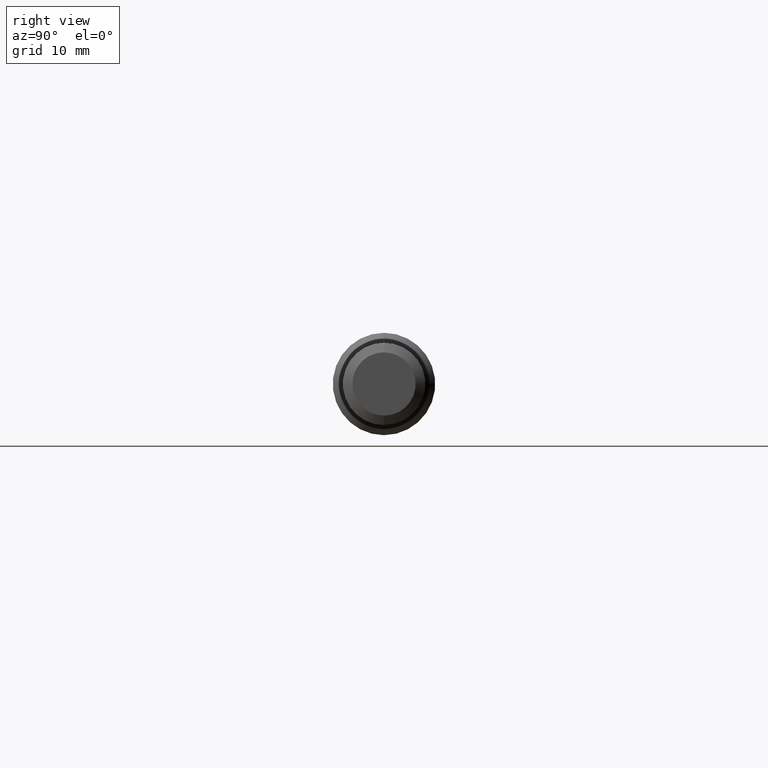
[diagram: clean part render]
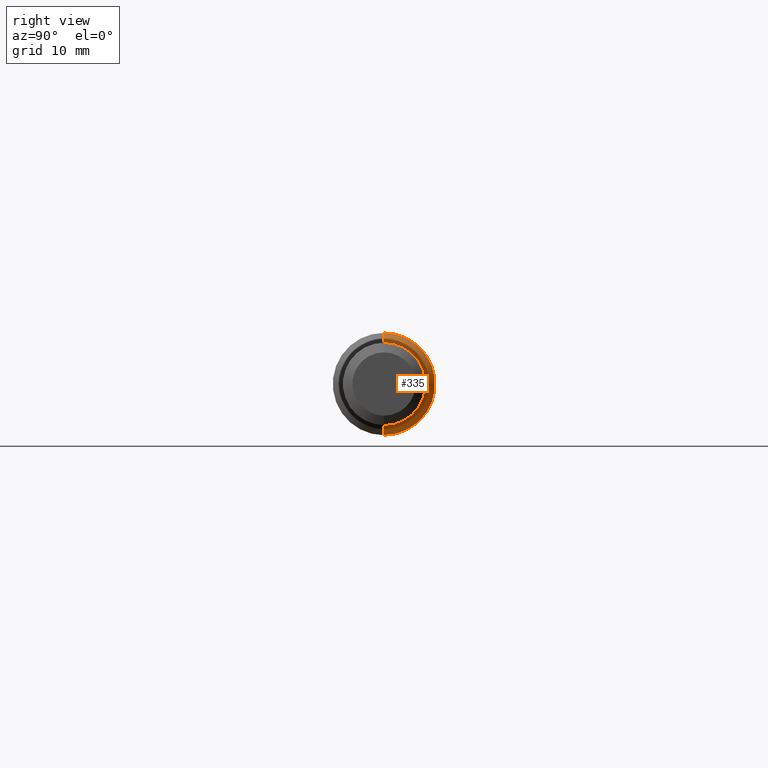
[diagram: same view with one face highlighted and labeled with its STEP entity id]
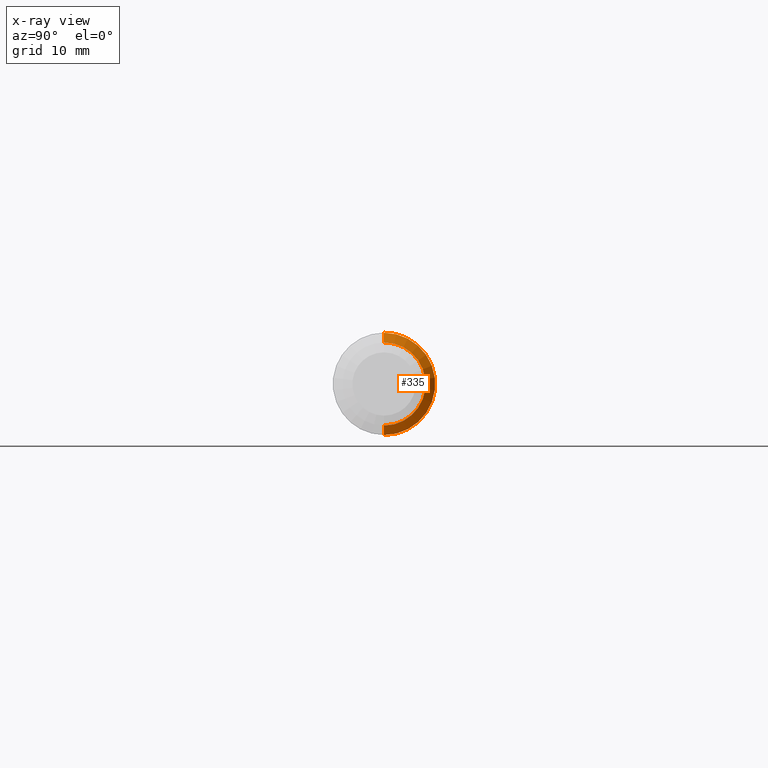
[diagram: x-ray of the same camera — body ghosted, the highlighted face saturated]
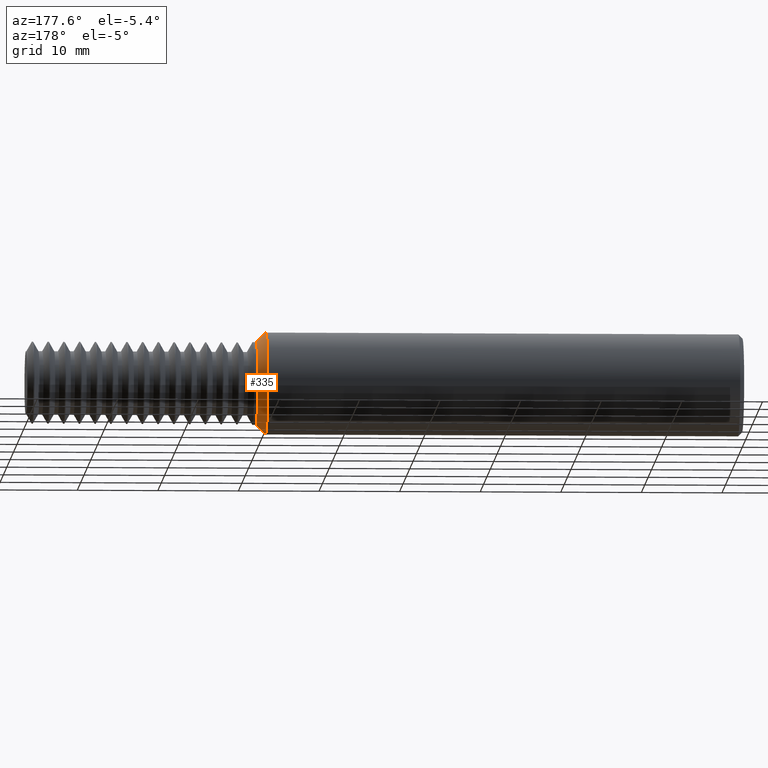
[diagram: same view with one face highlighted and labeled with its STEP entity id]
A machine part, right view. The second image highlights one B-rep face of the part: STEP entity #335.
The next image is the same camera in x-ray: the body ghosted, the highlighted face saturated — about 0% of this face is hidden behind the body in this view.
A second angle (auxiliary view) of the same face is appended — the face is thin or edge-on in the first view.
In plain terms, the highlighted conical surface has half-angle 45 deg.
Its self-contained STEP definition (entity closure, byte-faithful):
#9 = VERTEX_POINT ( 'NONE', #1103 ) ;
#146 = VECTOR ( 'NONE', #3137, 39.37007874015748143 ) ;
#208 = CARTESIAN_POINT ( 'NONE',  ( 2.328149999999999942, 0.000000000000000000, 0.2498499999999999888 ) ) ;
#243 = VERTEX_POINT ( 'NONE', #2754 ) ;
#252 = CONICAL_SURFACE ( 'NONE', #2700, 0.2030000000000000138, 0.7853981633974501664 ) ;
#323 = DIRECTION ( 'NONE',  ( -1.000000000000000000, -0.000000000000000000, -0.000000000000000000 ) ) ;
#335 = ADVANCED_FACE ( 'NONE', ( #2482 ), #252, .T. ) ;
#452 = EDGE_CURVE ( 'NONE', #243, #9, #461, .T. ) ;
#461 = CIRCLE ( 'NONE', #1828, 0.2030000000000000138 ) ;
#585 = CARTESIAN_POINT ( 'NONE',  ( 2.374999999999999556, 2.486033002269127361E-17, -0.2030000000000000138 ) ) ;
#724 = VECTOR ( 'NONE', #2819, 39.37007874015748143 ) ;
#897 = LINE ( 'NONE', #2896, #146 ) ;
#987 = DIRECTION ( 'NONE',  ( -1.000000000000000000, -0.000000000000000000, -0.000000000000000000 ) ) ;
#1103 = CARTESIAN_POINT ( 'NONE',  ( 2.374999999999999556, 2.772906514969394800E-17, -0.2030000000000000138 ) ) ;
#1110 = ORIENTED_EDGE ( 'NONE', *, *, #2810, .T. ) ;
#1587 = ORIENTED_EDGE ( 'NONE', *, *, #452, .T. ) ;
#1648 = ORIENTED_EDGE ( 'NONE', *, *, #2928, .F. ) ;
#1814 = LINE ( 'NONE', #585, #724 ) ;
#1828 = AXIS2_PLACEMENT_3D ( 'NONE', #3028, #2589, #1835 ) ;
#1835 = DIRECTION ( 'NONE',  ( 0.000000000000000000, 0.000000000000000000, 1.000000000000000000 ) ) ;
#1886 = CARTESIAN_POINT ( 'NONE',  ( 2.328149999999999942, 0.000000000000000000, 0.000000000000000000 ) ) ;
#1990 = DIRECTION ( 'NONE',  ( 0.000000000000000000, 0.000000000000000000, 1.000000000000000000 ) ) ;
#2206 = VERTEX_POINT ( 'NONE', #208 ) ;
#2313 = EDGE_CURVE ( 'NONE', #2206, #2764, #3168, .T. ) ;
#2336 = DIRECTION ( 'NONE',  ( 0.000000000000000000, 0.000000000000000000, 1.000000000000000000 ) ) ;
#2482 = FACE_OUTER_BOUND ( 'NONE', #2938, .T. ) ;
#2589 = DIRECTION ( 'NONE',  ( -1.000000000000000000, -0.000000000000000000, -0.000000000000000000 ) ) ;
#2700 = AXIS2_PLACEMENT_3D ( 'NONE', #2950, #987, #1990 ) ;
#2754 = CARTESIAN_POINT ( 'NONE',  ( 2.374999999999999556, 0.000000000000000000, 0.2030000000000000138 ) ) ;
#2761 = AXIS2_PLACEMENT_3D ( 'NONE', #1886, #323, #2336 ) ;
#2764 = VERTEX_POINT ( 'NONE', #2783 ) ;
#2783 = CARTESIAN_POINT ( 'NONE',  ( 2.328149999999999942, 3.059780027669661931E-17, -0.2498499999999999888 ) ) ;
#2810 = EDGE_CURVE ( 'NONE', #9, #2764, #1814, .T. ) ;
#2819 = DIRECTION ( 'NONE',  ( -0.7071067811865462405, 8.659560562354948882E-17, -0.7071067811865487940 ) ) ;
#2896 = CARTESIAN_POINT ( 'NONE',  ( 2.374999999999999556, 0.000000000000000000, 0.2030000000000000138 ) ) ;
#2897 = ORIENTED_EDGE ( 'NONE', *, *, #2313, .F. ) ;
#2928 = EDGE_CURVE ( 'NONE', #243, #2206, #897, .T. ) ;
#2938 = EDGE_LOOP ( 'NONE', ( #1587, #1110, #2897, #1648 ) ) ;
#2950 = CARTESIAN_POINT ( 'NONE',  ( 2.374999999999999556, 0.000000000000000000, 0.000000000000000000 ) ) ;
#3028 = CARTESIAN_POINT ( 'NONE',  ( 2.374999999999999556, 0.000000000000000000, 0.000000000000000000 ) ) ;
#3137 = DIRECTION ( 'NONE',  ( -0.7071067811865462405, 0.000000000000000000, 0.7071067811865487940 ) ) ;
#3168 = CIRCLE ( 'NONE', #2761, 0.2498499999999999888 ) ;